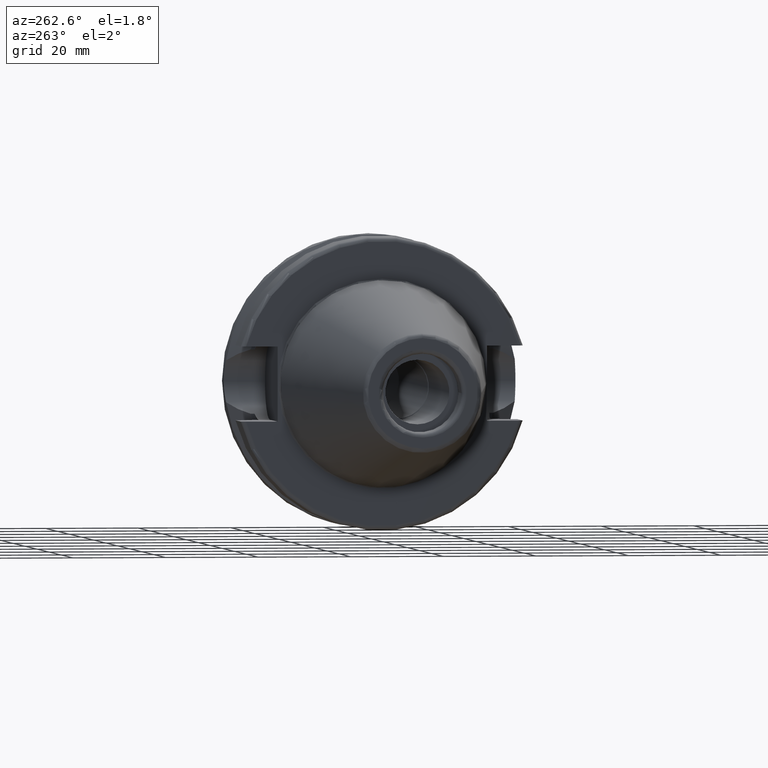
[diagram: clean part render]
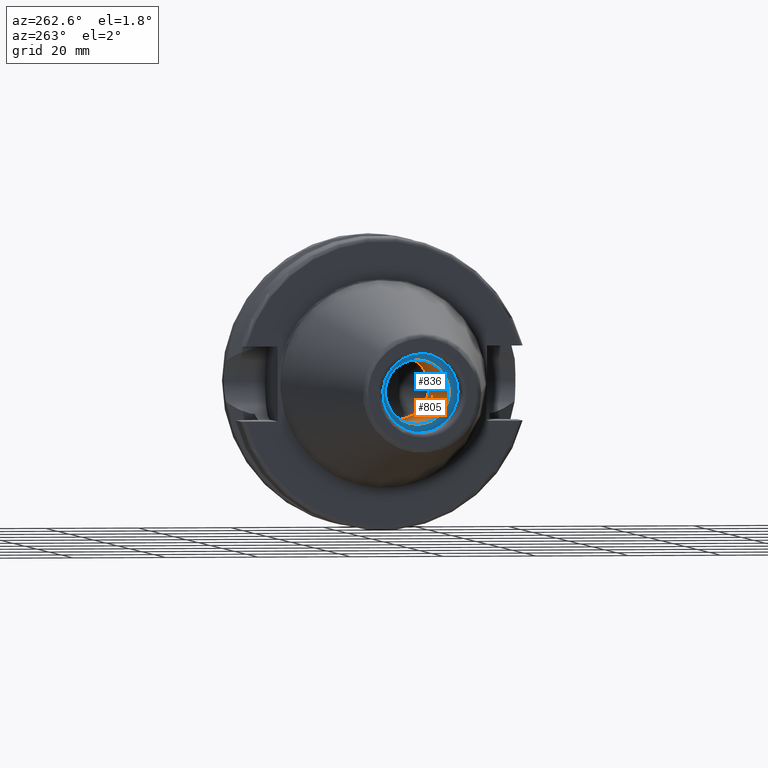
[diagram: same view with the hole feature highlighted: cylindrical wall and planar end face, labeled with their STEP entity ids]
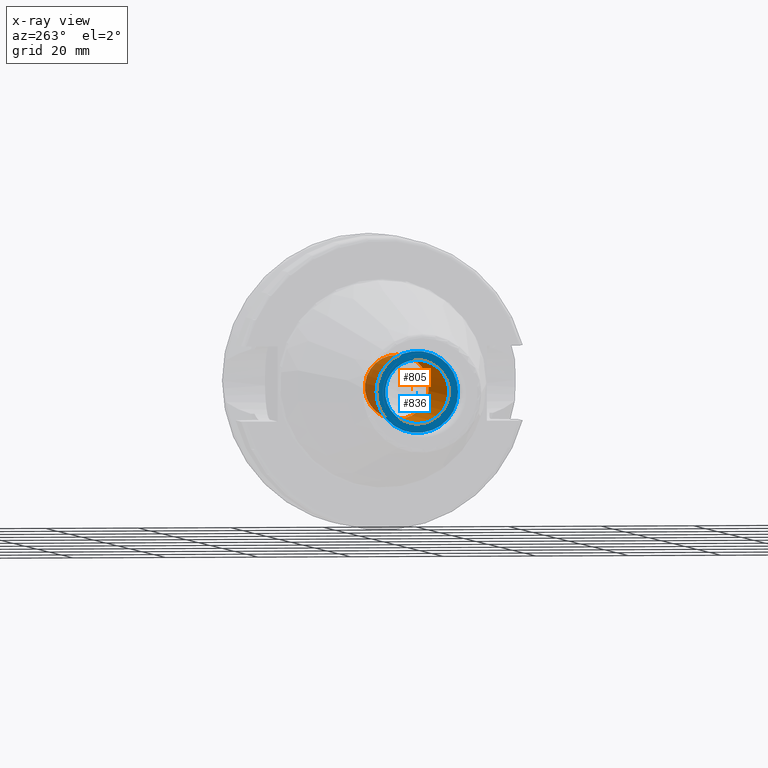
[diagram: x-ray of the same camera — body ghosted, the hole faces saturated]
A machine part, auxiliary view. The highlighted faces form one hole feature of diameter 13.835 mm: the cylindrical wall (entity #805, orange) and its adjacent planar end face (entity #836, blue) — they share a circular edge in the B-rep.
The next image is the same camera in x-ray (body ghosted, the hole faces saturated) — the bore reads through the body.
Wall:
#73=CIRCLE('',#890,6.9175);
#74=CIRCLE('',#892,6.9175);
#117=CYLINDRICAL_SURFACE('',#891,6.9175);
#140=FACE_OUTER_BOUND('',#193,.T.);
#193=EDGE_LOOP('',(#598,#599,#600,#601));
#260=LINE('',#1462,#306);
#306=VECTOR('',#1033,6.9175);
#360=VERTEX_POINT('',#1456);
#361=VERTEX_POINT('',#1460);
#448=EDGE_CURVE('',#360,#360,#73,.T.);
#450=EDGE_CURVE('',#361,#361,#74,.T.);
#451=EDGE_CURVE('',#361,#360,#260,.T.);
#598=ORIENTED_EDGE('',*,*,#450,.F.);
#599=ORIENTED_EDGE('',*,*,#451,.T.);
#600=ORIENTED_EDGE('',*,*,#448,.F.);
#601=ORIENTED_EDGE('',*,*,#451,.F.);
#805=ADVANCED_FACE('',(#140),#117,.F.);
#890=AXIS2_PLACEMENT_3D('',#1457,#1026,#1027);
#891=AXIS2_PLACEMENT_3D('',#1459,#1029,#1030);
#892=AXIS2_PLACEMENT_3D('',#1461,#1031,#1032);
#1026=DIRECTION('center_axis',(-1.,0.,0.));
#1027=DIRECTION('ref_axis',(0.,0.,1.));
#1029=DIRECTION('center_axis',(-1.,0.,0.));
#1030=DIRECTION('ref_axis',(0.,0.,1.));
#1031=DIRECTION('center_axis',(1.,0.,0.));
#1032=DIRECTION('ref_axis',(0.,0.,1.));
#1033=DIRECTION('',(1.,0.,0.));
#1456=CARTESIAN_POINT('',(-22.4,-8.47149423310182E-16,-6.9175));
#1457=CARTESIAN_POINT('Origin',(-22.4,0.,0.));
#1459=CARTESIAN_POINT('Origin',(-43.9,0.,0.));
#1460=CARTESIAN_POINT('',(-56.4,8.47149423310182E-16,-6.9175));
#1461=CARTESIAN_POINT('Origin',(-56.4,0.,0.));
#1462=CARTESIAN_POINT('',(-43.9,-8.47149423310182E-16,-6.9175));
End face:
#32=PLANE('',#954);
#57=FACE_BOUND('',#226,.T.);
#74=CIRCLE('',#892,6.9175);
#106=CIRCLE('',#955,8.8);
#171=FACE_OUTER_BOUND('',#225,.T.);
#225=EDGE_LOOP('',(#770));
#226=EDGE_LOOP('',(#771));
#361=VERTEX_POINT('',#1460);
#417=VERTEX_POINT('',#1736);
#450=EDGE_CURVE('',#361,#361,#74,.T.);
#536=EDGE_CURVE('',#417,#417,#106,.T.);
#770=ORIENTED_EDGE('',*,*,#536,.F.);
#771=ORIENTED_EDGE('',*,*,#450,.T.);
#836=ADVANCED_FACE('',(#171,#57),#32,.T.);
#892=AXIS2_PLACEMENT_3D('',#1461,#1031,#1032);
#954=AXIS2_PLACEMENT_3D('',#1735,#1190,#1191);
#955=AXIS2_PLACEMENT_3D('',#1737,#1192,#1193);
#1031=DIRECTION('center_axis',(1.,0.,0.));
#1032=DIRECTION('ref_axis',(0.,0.,1.));
#1190=DIRECTION('center_axis',(-1.,0.,0.));
#1191=DIRECTION('ref_axis',(0.,0.,1.));
#1192=DIRECTION('center_axis',(1.,0.,0.));
#1193=DIRECTION('ref_axis',(0.,0.,-1.));
#1460=CARTESIAN_POINT('',(-56.4,8.47149423310182E-16,-6.9175));
#1461=CARTESIAN_POINT('Origin',(-56.4,0.,0.));
#1735=CARTESIAN_POINT('Origin',(-56.4,8.8,0.));
#1736=CARTESIAN_POINT('',(-56.4,-8.8,-1.07768918324967E-15));
#1737=CARTESIAN_POINT('Origin',(-56.4,0.,0.));